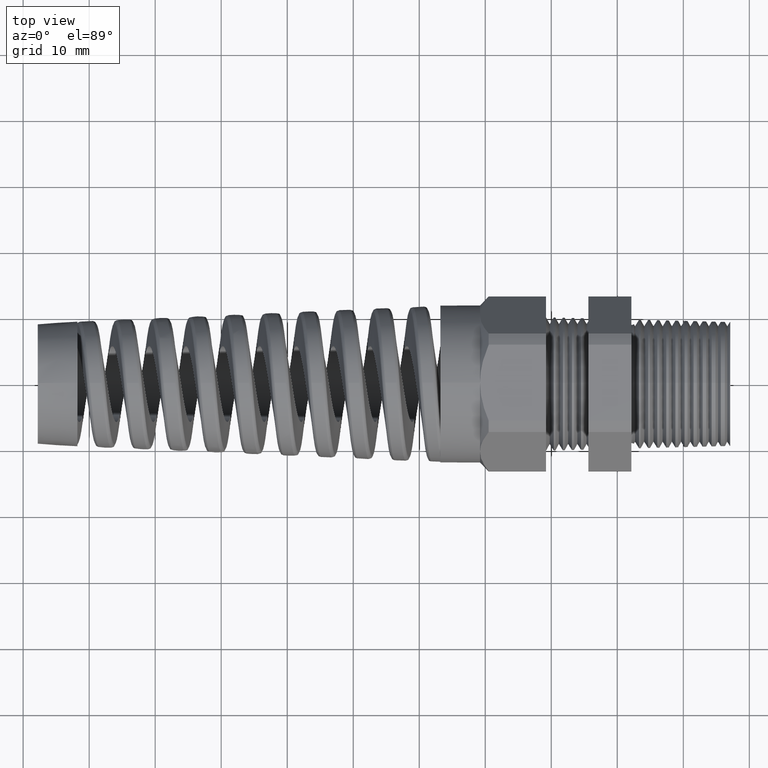
[diagram: clean part render]
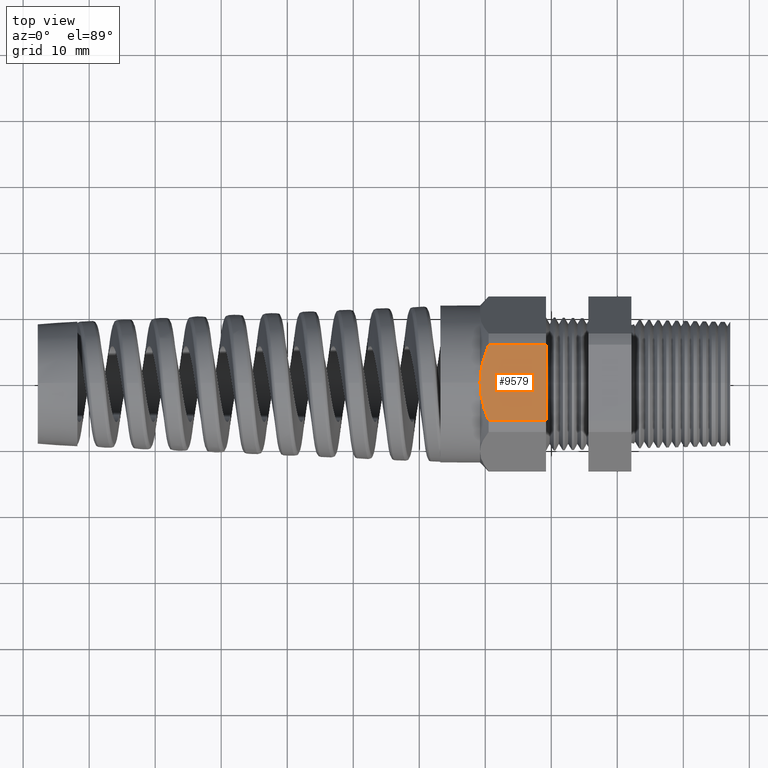
[diagram: same view with one face highlighted and labeled with its STEP entity id]
A machine part, top view. The second image highlights one B-rep face of the part: STEP entity #9579.
In plain terms, the highlighted planar face has unit normal (0, 0, 1).
Its self-contained STEP definition (entity closure, byte-faithful):
#818 = VERTEX_POINT ( 'NONE', #4371 ) ;
#4371 = CARTESIAN_POINT ( 'NONE',  ( -1.160819685039370200, 0.2264307620443832800, 0.4699999999999999200 ) ) ;
#7518 = VERTEX_POINT ( 'NONE', #11930 ) ;
#9561 = EDGE_CURVE ( 'NONE', #818, #7518, #12362, .T. ) ;
#9562 = ORIENTED_EDGE ( 'NONE', *, *, #9561, .T. ) ;
#9565 = EDGE_CURVE ( 'NONE', #7518, #9569, #12413, .T. ) ;
#9567 = ORIENTED_EDGE ( 'NONE', *, *, #9565, .T. ) ;
#9568 = EDGE_LOOP ( 'NONE', ( #9570, #9562, #9567, #10037, #9995 ) ) ;
#9569 = VERTEX_POINT ( 'NONE', #12414 ) ;
#9570 = ORIENTED_EDGE ( 'NONE', *, *, #9648, .T. ) ;
#9577 = VERTEX_POINT ( 'NONE', #12427 ) ;
#9579 = ADVANCED_FACE ( 'NONE', ( #12426 ), #12425, .T. ) ;
#9648 = EDGE_CURVE ( 'NONE', #9577, #818, #12470, .T. ) ;
#9983 = VERTEX_POINT ( 'NONE', #12485 ) ;
#9986 = EDGE_CURVE ( 'NONE', #9577, #9983, #12544, .T. ) ;
#9995 = ORIENTED_EDGE ( 'NONE', *, *, #9986, .F. ) ;
#10035 = EDGE_CURVE ( 'NONE', #9983, #9569, #12609, .T. ) ;
#10037 = ORIENTED_EDGE ( 'NONE', *, *, #10035, .F. ) ;
#11930 = CARTESIAN_POINT ( 'NONE',  ( -1.212519685039370000, 0.0000000000000000000, 0.4699999999999999200 ) ) ;
#12350 = CARTESIAN_POINT ( 'NONE',  ( -1.211272925247352200, 0.03924163778662351200, 0.4699999999999999200 ) ) ;
#12351 = CARTESIAN_POINT ( 'NONE',  ( -1.206505384426680000, 0.07782038235249975900, 0.4699999999999999200 ) ) ;
#12352 = CARTESIAN_POINT ( 'NONE',  ( -1.202986906930677800, 0.09688970369981479700, 0.4699999999999999200 ) ) ;
#12353 = CARTESIAN_POINT ( 'NONE',  ( -1.193957968232915800, 0.1346420459264778800, 0.4699999999999997500 ) ) ;
#12354 = CARTESIAN_POINT ( 'NONE',  ( -1.188448686756323300, 0.1533252955870068300, 0.4699999999999997500 ) ) ;
#12355 = CARTESIAN_POINT ( 'NONE',  ( -1.175730508465536900, 0.1903621927138391400, 0.4699999999999999200 ) ) ;
#12356 = CARTESIAN_POINT ( 'NONE',  ( -1.168556414821144300, 0.2086052162099337200, 0.4699999999999998600 ) ) ;
#12357 = CARTESIAN_POINT ( 'NONE',  ( -1.160819685039370200, 0.2264307620443832800, 0.4699999999999999200 ) ) ;
#12362 = B_SPLINE_CURVE_WITH_KNOTS ( 'NONE', 3,
 ( #12357, #12356, #12355, #12354, #12353, #12352, #12351, #12350, #12416, #12415 ),
 .UNSPECIFIED., .F., .F.,
 ( 4, 2, 2, 2, 4 ),
 ( 0.009140358755258091600, 0.01061001397932214200, 0.01207966920338619300, 0.01354932442745024300, 0.01501897965151429600 ),
 .UNSPECIFIED. ) ;
#12405 = CARTESIAN_POINT ( 'NONE',  ( -1.160819685039369900, -0.2264307620443835900, 0.4699999999999999200 ) ) ;
#12406 = CARTESIAN_POINT ( 'NONE',  ( -1.168556565238666500, -0.2086048696456211900, 0.4699999999999999700 ) ) ;
#12407 = CARTESIAN_POINT ( 'NONE',  ( -1.175705272508839300, -0.1904348960138971000, 0.4699999999999999700 ) ) ;
#12408 = CARTESIAN_POINT ( 'NONE',  ( -1.188468258097386900, -0.1532690879941747700, 0.4699999999999999700 ) ) ;
#12409 = CARTESIAN_POINT ( 'NONE',  ( -1.193987294149184000, -0.1345390626635398200, 0.4699999999999997500 ) ) ;
#12410 = CARTESIAN_POINT ( 'NONE',  ( -1.207534503684483800, -0.07783554612607111700, 0.4699999999999999200 ) ) ;
#12411 = CARTESIAN_POINT ( 'NONE',  ( -1.212519685039370500, -0.03934296915062193700, 0.4700000000000000300 ) ) ;
#12412 = CARTESIAN_POINT ( 'NONE',  ( -1.212519685039370000, 0.0000000000000000000, 0.4699999999999999200 ) ) ;
#12413 = B_SPLINE_CURVE_WITH_KNOTS ( 'NONE', 3,
 ( #12412, #12411, #12410, #12409, #12408, #12407, #12406, #12405 ),
 .UNSPECIFIED., .F., .F.,
 ( 4, 2, 2, 4 ),
 ( 0.01501897965151429600, 0.01796263803772296000, 0.01943446723082728800, 0.02090629642393162000 ),
 .UNSPECIFIED. ) ;
#12414 = CARTESIAN_POINT ( 'NONE',  ( -1.160819685039369900, -0.2264307620443835900, 0.4699999999999999200 ) ) ;
#12415 = CARTESIAN_POINT ( 'NONE',  ( -1.212519685039370000, 0.0000000000000000000, 0.4699999999999999200 ) ) ;
#12416 = CARTESIAN_POINT ( 'NONE',  ( -1.212519685039370700, 0.01964242875915812500, 0.4700000000000000300 ) ) ;
#12421 = DIRECTION ( 'NONE',  ( 1.000000000000000000, 0.0000000000000000000, 0.0000000000000000000 ) ) ;
#12422 = DIRECTION ( 'NONE',  ( 0.0000000000000000000, 0.0000000000000000000, 1.000000000000000000 ) ) ;
#12423 = CARTESIAN_POINT ( 'NONE',  ( 0.2800000000000000300, -0.2264307620443832800, 0.4699999999999999200 ) ) ;
#12424 = AXIS2_PLACEMENT_3D ( 'NONE', #12423, #12422, #12421 ) ;
#12425 = PLANE ( 'NONE',  #12424 ) ;
#12426 = FACE_OUTER_BOUND ( 'NONE', #9568, .T. ) ;
#12427 = CARTESIAN_POINT ( 'NONE',  ( -0.8188188976377951400, 0.2264307620443832800, 0.4699999999999999200 ) ) ;
#12467 = DIRECTION ( 'NONE',  ( -1.000000000000000000, 0.0000000000000000000, 0.0000000000000000000 ) ) ;
#12468 = VECTOR ( 'NONE', #12467, 39.37007874015748100 ) ;
#12469 = CARTESIAN_POINT ( 'NONE',  ( 0.2800000000000000300, 0.2264307620443832800, 0.4699999999999999200 ) ) ;
#12470 = LINE ( 'NONE', #12469, #12468 ) ;
#12485 = CARTESIAN_POINT ( 'NONE',  ( -0.8188188976377951400, -0.2264307620443835600, 0.4699999999999997500 ) ) ;
#12541 = DIRECTION ( 'NONE',  ( 0.0000000000000000000, -1.000000000000000000, 0.0000000000000000000 ) ) ;
#12542 = VECTOR ( 'NONE', #12541, 39.37007874015748100 ) ;
#12543 = CARTESIAN_POINT ( 'NONE',  ( -0.8188188976377951400, 0.4000000000000000200, 0.4699999999999999200 ) ) ;
#12544 = LINE ( 'NONE', #12543, #12542 ) ;
#12602 = DIRECTION ( 'NONE',  ( -1.000000000000000000, 0.0000000000000000000, 0.0000000000000000000 ) ) ;
#12603 = VECTOR ( 'NONE', #12602, 39.37007874015748100 ) ;
#12604 = CARTESIAN_POINT ( 'NONE',  ( 0.2800000000000000300, -0.2264307620443835600, 0.4699999999999997500 ) ) ;
#12609 = LINE ( 'NONE', #12604, #12603 ) ;